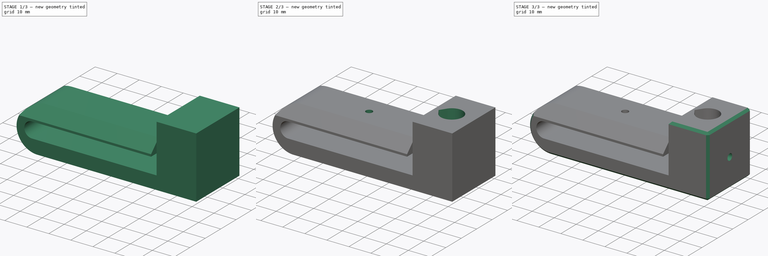
[diagram: build sequence overview — one tinted view per stage of 3, left to right]
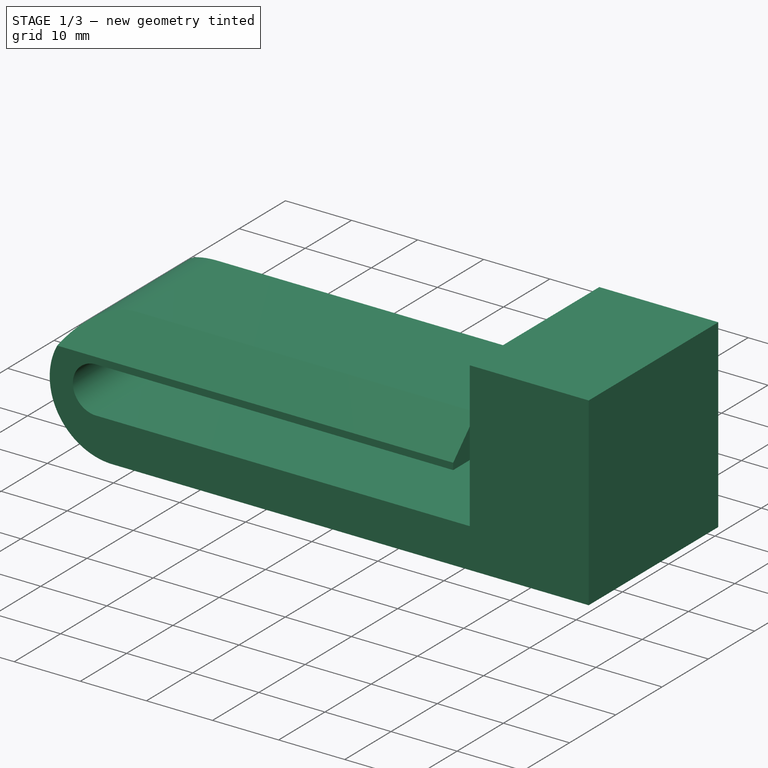
[diagram: stage 1 of 3 — iso view after this stage's code; geometry added in this stage tinted green]
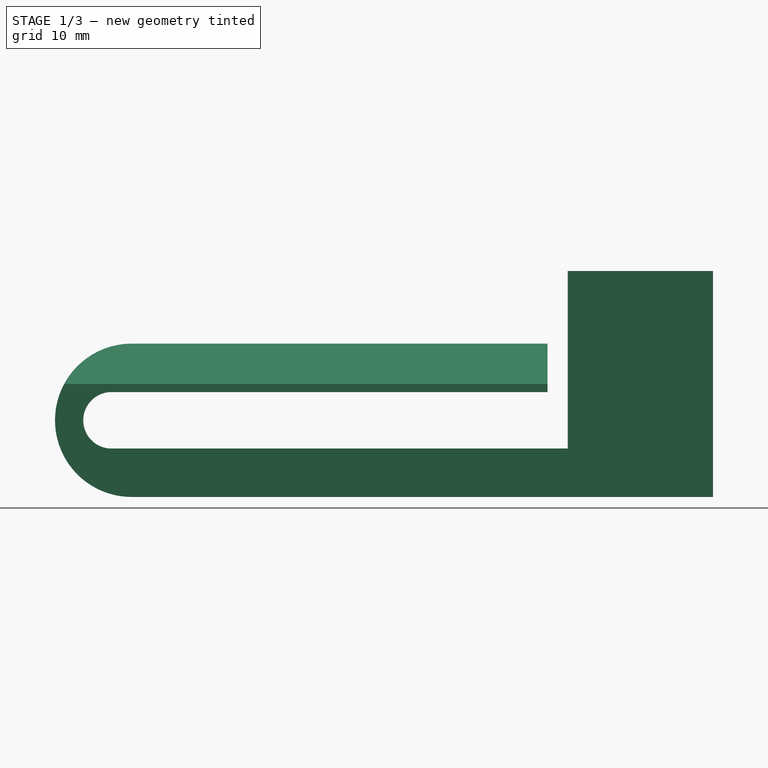
[diagram: stage 1 of 3 — front view after this stage's code; geometry added in this stage tinted green]
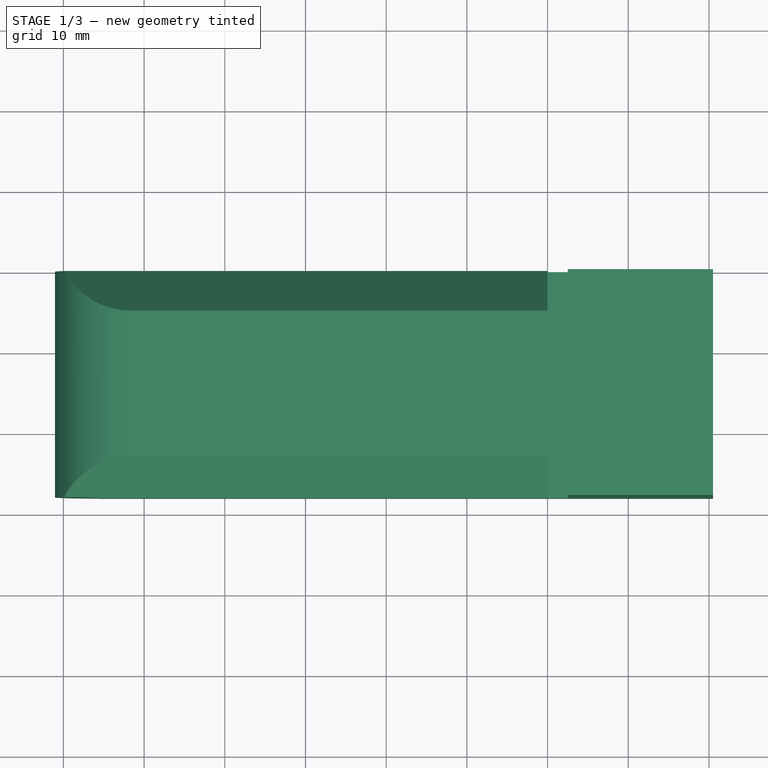
[diagram: stage 1 of 3 — top view after this stage's code; geometry added in this stage tinted green]
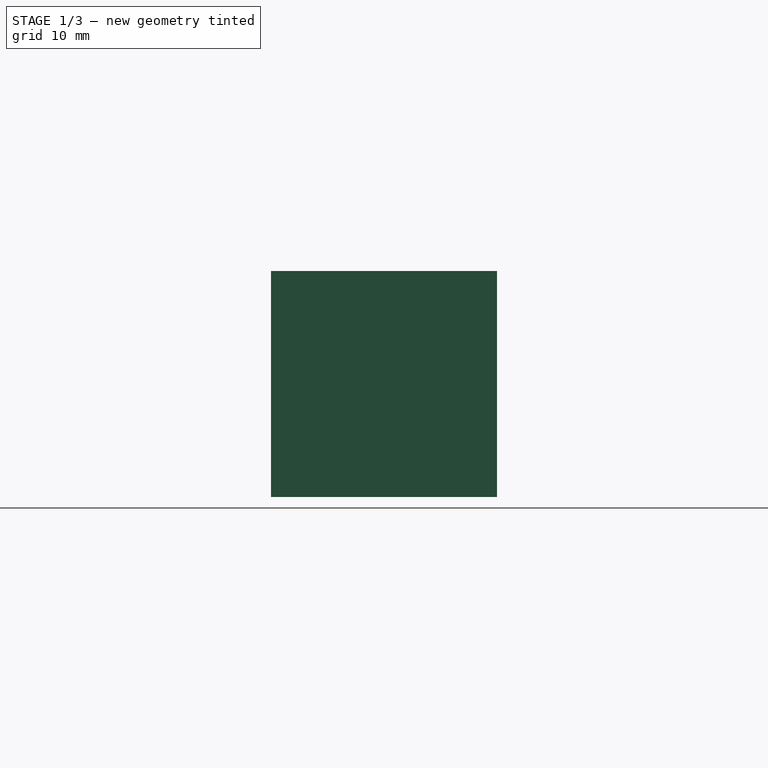
[diagram: stage 1 of 3 — right view after this stage's code; geometry added in this stage tinted green]
FCSTD DOCUMENT  (FreeCAD 0.20R29410 (Git))
Label: #24_TOOL_Pen
License: All rights reserved
LicenseURL: http://en.wikipedia.org/wiki/All_rights_reserved
objects: Sketcher::SketchObject×5, PartDesign::Pocket×4, PartDesign::Pad×1, PartDesign::Chamfer×1, PartDesign::Body×1
note: 18 computed .brp shape members not serialized (recipe doc carries the construction recipe); baked Part::Feature solids carry a one-line shape summary decoded from their .brp

FEATURE [Sketcher::SketchObject] Sketch
  FullyConstrained = true
  MapMode = 5
  Placement = pos=(0,0,0) rot=(1,0,0;1.5708rad)
  Support = -> [XZ_Plane]
  sketch-geometry (10):
    g0: LineSegment StartX=0 StartY=0 StartZ=0 EndX=-54.04 EndY=0 EndZ=0
    g1: LineSegment StartX=0 StartY=0 StartZ=0 EndX=0 EndY=6 EndZ=0
    g2: LineSegment StartX=0 StartY=6 StartZ=0 EndX=-51.54 EndY=6 EndZ=0
    g3: ArcOfCircle CenterX=-51.54 CenterY=-3.5 CenterZ=0 NormalX=0 NormalY=0 NormalZ=1 AngleXU=0 Radius=9.5 StartAngle=1.5708 EndAngle=4.71239
    g4: ArcOfCircle CenterX=-54.04 CenterY=-3.5 CenterZ=0 NormalX=0 NormalY=0 NormalZ=1 AngleXU=0 Radius=3.5 StartAngle=1.5708 EndAngle=4.71239
    g5: LineSegment StartX=-51.54 StartY=-13 StartZ=0 EndX=20.5 EndY=-13 EndZ=0
    g6: LineSegment StartX=-54.04 StartY=-7 StartZ=0 EndX=2.5 EndY=-7 EndZ=0
    g7: LineSegment StartX=2.5 StartY=-7 StartZ=0 EndX=2.5 EndY=15 EndZ=0
    g8: LineSegment StartX=2.5 StartY=15 StartZ=0 EndX=20.5 EndY=15 EndZ=0
    g9: LineSegment StartX=20.5 StartY=-13 StartZ=0 EndX=20.5 EndY=15 EndZ=0
  constraints (27):
    c: Coincident(g0,g-1)
    c: Horizontal(g0)
    c: Vertical(g1)
    c: Horizontal(g2)
    c: Coincident(g1,g0)
    c: Coincident(g1,g2)
    c: Horizontal(g5)
    c: DistanceX(g5,g5) = 72.04
    c: DistanceX(g2,g2) = 51.54
    c: DistanceY(g1,g1) = 6
    c: Diameter(g3) = 19
    c: Diameter(g4) = 7
    c: DistanceX(g0,g0) = 54.04
    c: Horizontal(g6)
    c: DistanceX(g6,g6) = 56.54
    c: Coincident(g7,g6)
    c: Vertical(g7)
    c: Coincident(g8,g7)
    c: Horizontal(g8)
    c: Coincident(g9,g5)
    c: Vertical(g9)
    c: Coincident(g8,g9)
    c: DistanceY(g7,g7) = 22
    c: Tangent(g4,g6) = -1.5708
    c: Tangent(g4,g0) = -1.5708
    c: Tangent(g3,g2) = -1.5708
    c: Tangent(g3,g5) = -1.5708
FEATURE [PartDesign::Pad] Pad
  Direction = (0,-1,2e-16)
  Length = 28
  Length2 = 10
  Placement = pos=(0,0,0) rot=(1,0,0;1.5708rad)
  Profile = -> Sketch
  ReferenceAxis = -> Sketch [N_Axis]
  Refine = true
  Type = 0
FEATURE [Sketcher::SketchObject] Sketch001
  ExternalGeometry = -> [Pad]
  FullyConstrained = true
  MapMode = 5
  Placement = pos=(0,0,0) rot=(0.707107,0,0.707107;3.14159rad)
  Support = -> [Pad]
  sketch-geometry (6):
    g0: LineSegment StartX=1 StartY=28 StartZ=0 EndX=6 EndY=23 EndZ=0
    g1: LineSegment StartX=6 StartY=5 StartZ=0 EndX=1 EndY=0 EndZ=0
    g2: LineSegment StartX=1 StartY=28 StartZ=0 EndX=6 EndY=28 EndZ=0
    g3: LineSegment StartX=6 StartY=23 StartZ=0 EndX=6 EndY=28 EndZ=0
    g4: LineSegment StartX=6 StartY=5 StartZ=0 EndX=6 EndY=0 EndZ=0
    g5: LineSegment StartX=1 StartY=0 StartZ=0 EndX=6 EndY=0 EndZ=0
  constraints (16):
    c: PointOnObject(g0,g-3)
    c: PointOnObject(g0,g-5)
    c: PointOnObject(g1,g-5)
    c: PointOnObject(g1,g-4)
    c: DistanceX(g-1,g1) = 1
    c: DistanceX(g-3,g0) = 1
    c: Angle(g0,g-3) = 0.785398
    c: Angle(g1,g-4) = 2.35619
    c: Coincident(g2,g0)
    c: Coincident(g2,g-5)
    c: Coincident(g3,g0)
    c: Coincident(g3,g2)
    c: Coincident(g4,g1)
    c: Coincident(g4,g-5)
    c: Coincident(g5,g1)
    c: Coincident(g5,g4)
FEATURE [PartDesign::Pocket] Pocket
  BaseFeature = -> Pad
  Direction = (-1,0,2e-16)
  Length = 100
  Length2 = 5
  Placement = pos=(0,0,0) rot=(1,0,0;1.5708rad)
  Profile = -> Sketch001
  ReferenceAxis = -> Sketch001 [N_Axis]
  Refine = true
  Type = 0
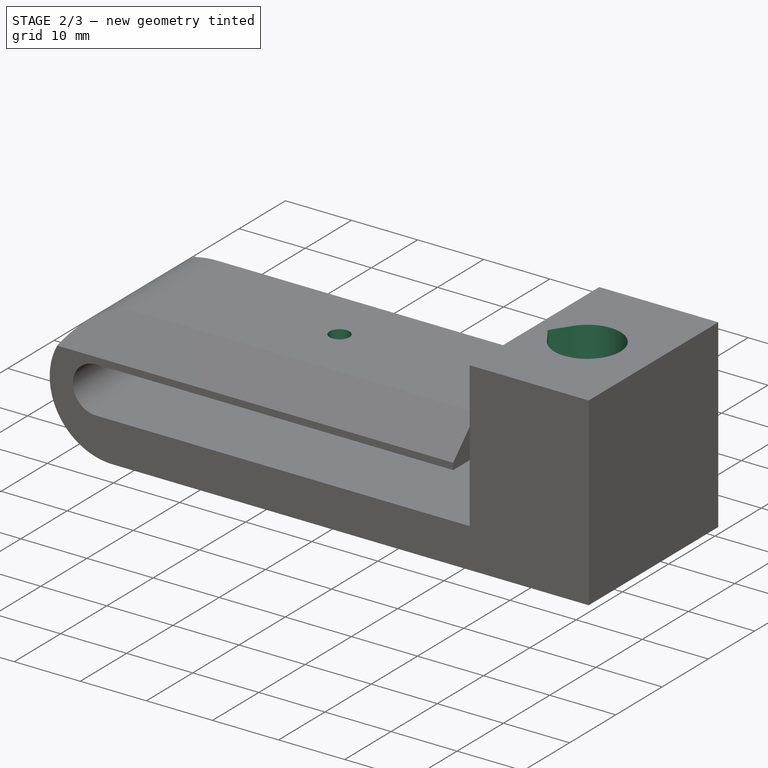
[diagram: stage 2 of 3 — iso view after this stage's code; geometry added in this stage tinted green]
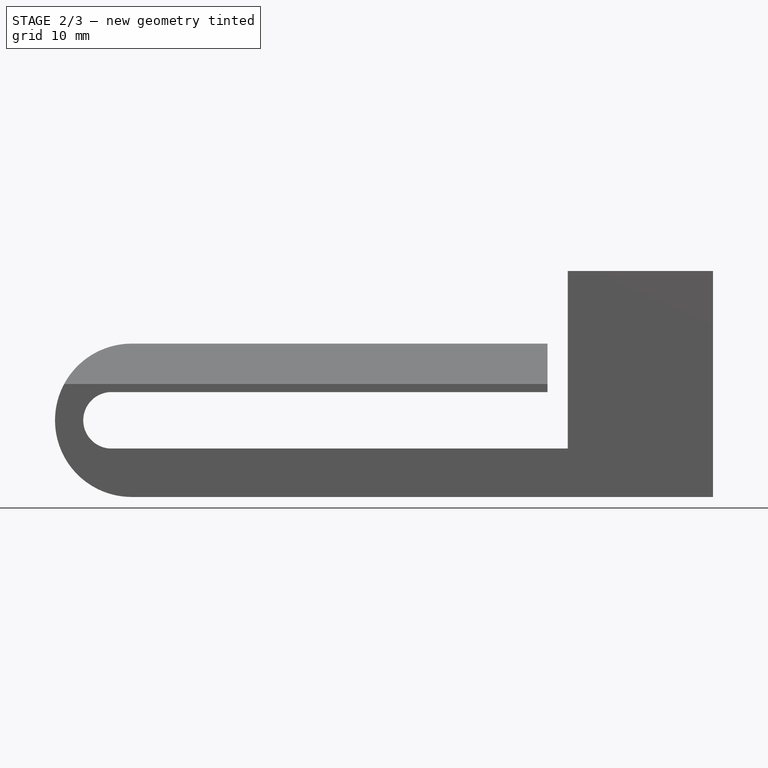
[diagram: stage 2 of 3 — front view after this stage's code; geometry added in this stage tinted green]
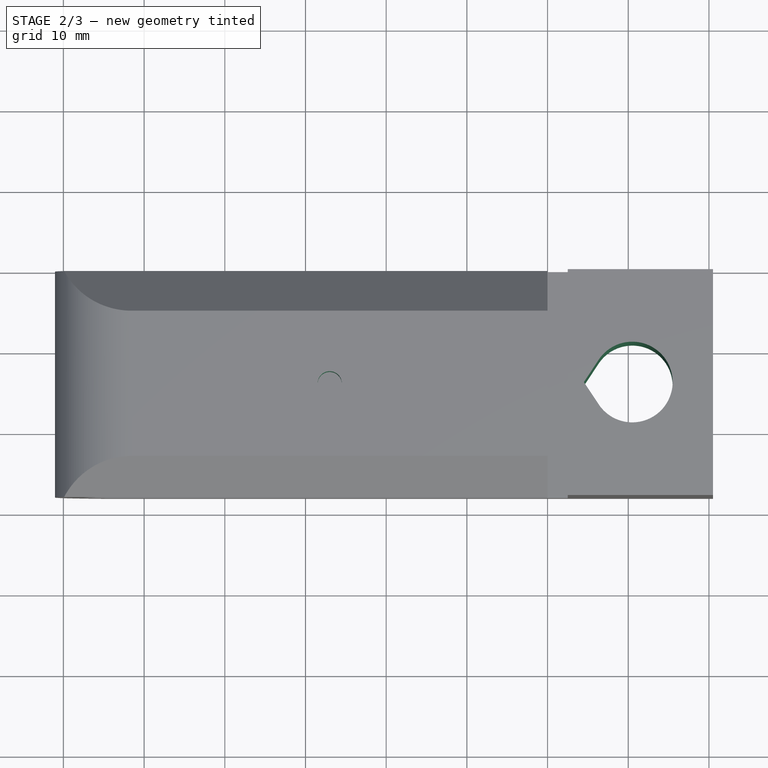
[diagram: stage 2 of 3 — top view after this stage's code; geometry added in this stage tinted green]
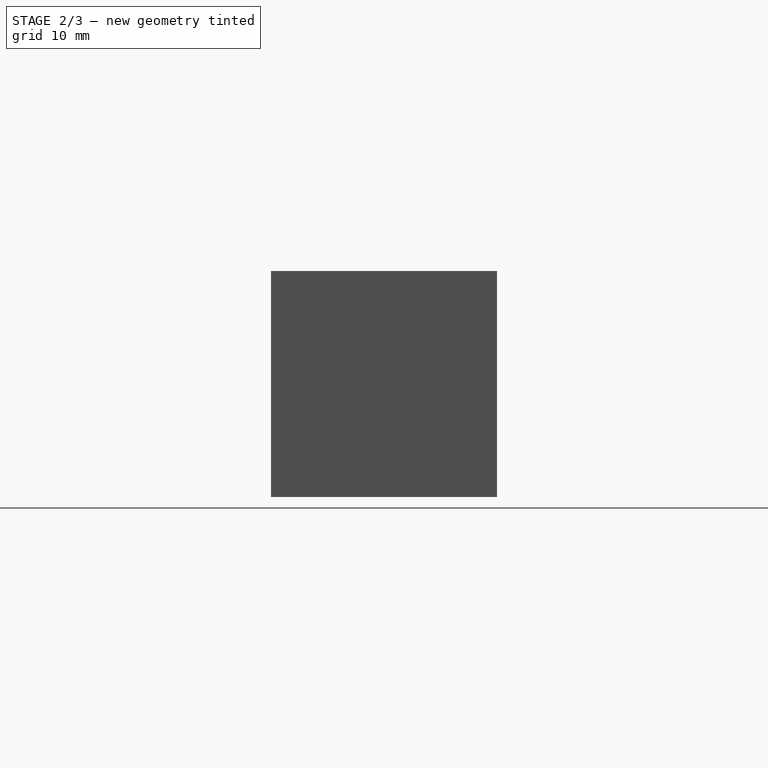
[diagram: stage 2 of 3 — right view after this stage's code; geometry added in this stage tinted green]
FEATURE [Sketcher::SketchObject] Sketch002
  ExternalGeometry = -> [Pocket]
  FullyConstrained = true
  MapMode = 5
  Placement = pos=(0,1.3e-15,6) rot=(0,0,1;3.14159rad)
  Support = -> [Pocket]
  sketch-geometry (3):
    g0: Circle CenterX=27 CenterY=14 CenterZ=0 NormalX=0 NormalY=0 NormalZ=1 AngleXU=0 Radius=1.5
    g1: LineSegment StartX=0 StartY=5 StartZ=0 EndX=27 EndY=14 EndZ=0
    g2: LineSegment StartX=27 StartY=14 StartZ=0 EndX=0 EndY=23 EndZ=0
  constraints (7):
    c: Diameter(g0) = 3
    c: DistanceX(g-3,g0) = 27
    c: Coincident(g1,g-3)
    c: Coincident(g1,g0)
    c: Coincident(g2,g0)
    c: Coincident(g2,g-3)
    c: Equal(g2,g1)
FEATURE [PartDesign::Pocket] Pocket001
  BaseFeature = -> Pocket
  Direction = (0,-2e-16,-1)
  Length = 7
  Length2 = 5
  Placement = pos=(0,0,0) rot=(1,0,0;1.5708rad)
  Profile = -> Sketch002
  ReferenceAxis = -> Sketch002 [N_Axis]
  Refine = true
  Type = 0
FEATURE [Sketcher::SketchObject] Sketch003
  ExternalGeometry = -> [Pocket001]
  FullyConstrained = true
  MapMode = 5
  Placement = pos=(0,3.3e-15,15) rot=(0,0,1;3.14159rad)
  Support = -> [Pocket001]
  sketch-geometry (7):
    g0: ArcOfCircle CenterX=-10.5 CenterY=14 CenterZ=0 NormalX=0 NormalY=0 NormalZ=1 AngleXU=0 Radius=5 StartAngle=0.585686 EndAngle=5.6975
    g1: LineSegment StartX=-6.33333 StartY=11.2361 StartZ=0 EndX=-4.5 EndY=14 EndZ=0
    g2: LineSegment StartX=-4.5 StartY=14 StartZ=0 EndX=-6.33333 EndY=16.7639 EndZ=0
    g3: LineSegment StartX=-10.5 StartY=14 StartZ=0 EndX=-2.5 EndY=28 EndZ=0
    g4: LineSegment StartX=-10.5 StartY=14 StartZ=0 EndX=-2.5 EndY=0 EndZ=0
    g5: LineSegment StartX=-4.5 StartY=14 StartZ=0 EndX=-2.5 EndY=28 EndZ=0
    g6: LineSegment StartX=-4.5 StartY=14 StartZ=0 EndX=-2.5 EndY=0 EndZ=0
  constraints (16):
    c: Coincident(g2,g1)
    c: DistanceX(g0,g1) = 6
    c: Diameter(g0) = 10
    c: Tangent(g0,g1) = -1.5708
    c: Tangent(g0,g2) = -1.5708
    c: Coincident(g3,g0)
    c: Coincident(g3,g-3)
    c: Coincident(g4,g0)
    c: Coincident(g4,g-3)
    c: Equal(g4,g3)
    c: DistanceX(g0,g4) = 8
    c: Coincident(g5,g1)
    c: Coincident(g5,g3)
    c: Coincident(g6,g1)
    c: Coincident(g6,g4)
    c: Equal(g5,g6)
FEATURE [PartDesign::Pocket] Pocket002
  BaseFeature = -> Pocket001
  Direction = (0,-2e-16,-1)
  Length = 40
  Length2 = 5
  Placement = pos=(0,0,0) rot=(1,0,0;1.5708rad)
  Profile = -> Sketch003
  ReferenceAxis = -> Sketch003 [N_Axis]
  Refine = true
  Type = 0
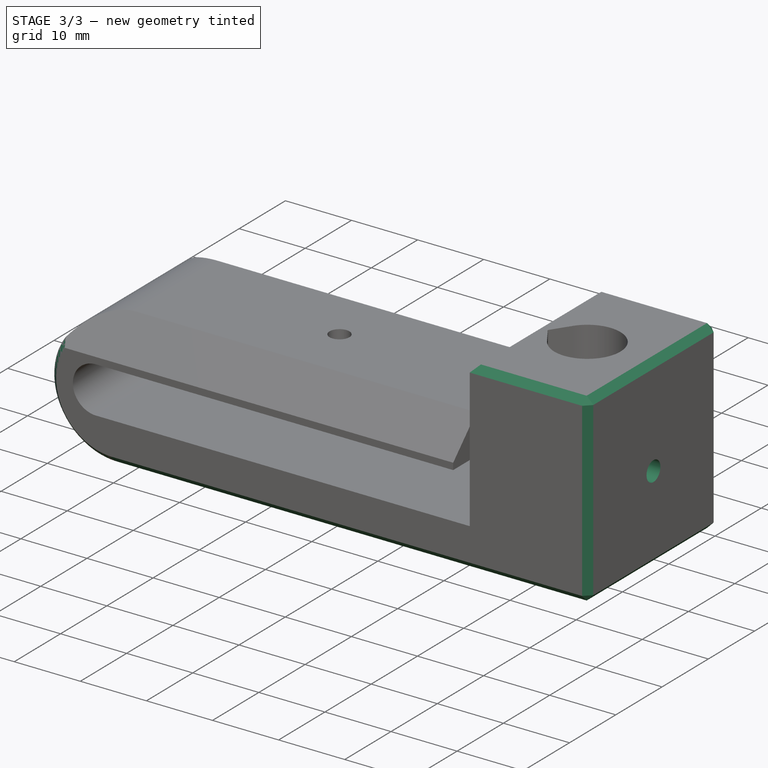
[diagram: stage 3 of 3 — iso view after this stage's code; geometry added in this stage tinted green]
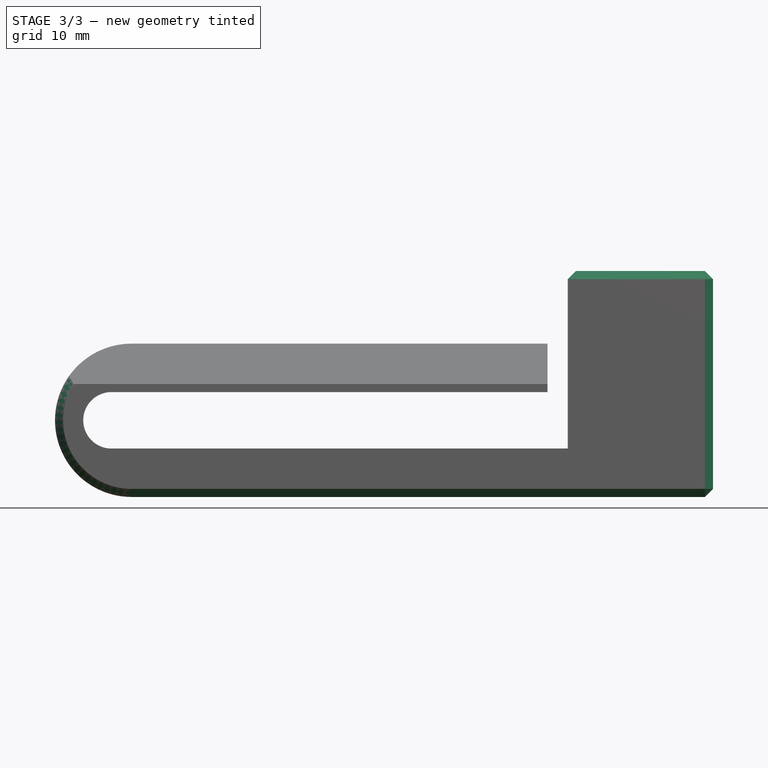
[diagram: stage 3 of 3 — front view after this stage's code; geometry added in this stage tinted green]
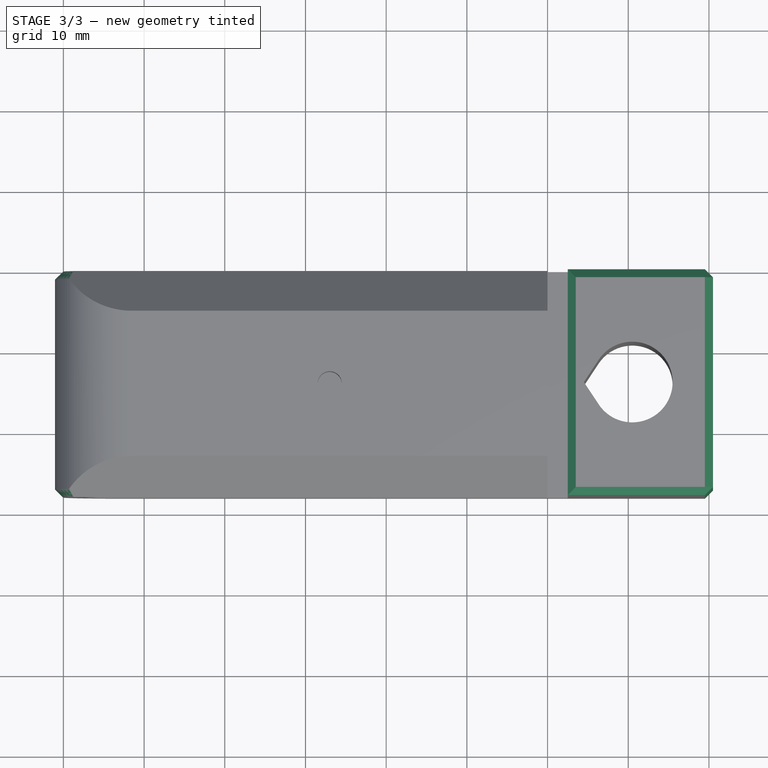
[diagram: stage 3 of 3 — top view after this stage's code; geometry added in this stage tinted green]
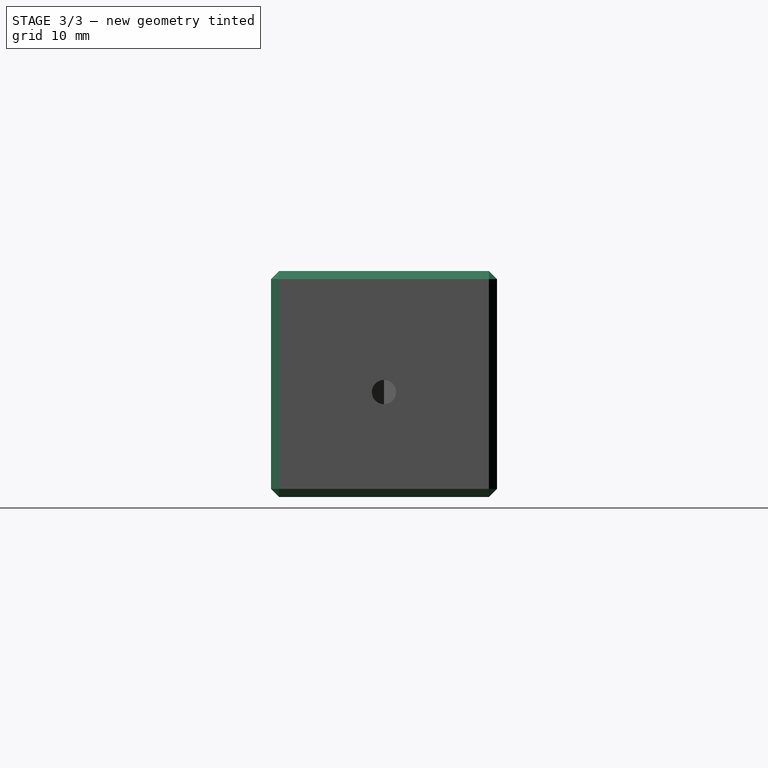
[diagram: stage 3 of 3 — right view after this stage's code; geometry added in this stage tinted green]
FEATURE [Sketcher::SketchObject] Sketch004
  ExternalGeometry = -> [Pocket002]
  FullyConstrained = true
  MapMode = 5
  Placement = pos=(20.5,0,0) rot=(0.707107,0,0.707107;3.14159rad)
  Support = -> [Pocket002]
  sketch-geometry (3):
    g0: Circle CenterX=0 CenterY=14 CenterZ=0 NormalX=0 NormalY=0 NormalZ=1 AngleXU=0 Radius=1.5
    g1: LineSegment StartX=0 StartY=14 StartZ=0 EndX=15 EndY=28 EndZ=0
    g2: LineSegment StartX=0 StartY=14 StartZ=0 EndX=15 EndY=-3.6e-15 EndZ=0
  constraints (7):
    c: PointOnObject(g0,g-2)
    c: Diameter(g0) = 3
    c: Coincident(g1,g0)
    c: Coincident(g1,g-3)
    c: Coincident(g2,g0)
    c: Coincident(g2,g-3)
    c: Equal(g1,g2)
FEATURE [PartDesign::Pocket] Pocket003
  BaseFeature = -> Pocket002
  Direction = (-1,0,2e-16)
  Length = 10
  Length2 = 5
  Placement = pos=(0,0,0) rot=(1,0,0;1.5708rad)
  Profile = -> Sketch004
  ReferenceAxis = -> Sketch004 [N_Axis]
  Refine = true
  Type = 0
FEATURE [PartDesign::Chamfer] Chamfer
  Angle = 45
  Base = -> Pocket003 [Edge20,Edge21,Edge22,Edge36,Edge14,Edge40,Edge15,Edge23,Edge42,Edge13,Edge12]
  BaseFeature = -> Pocket003
  ChamferType = 0
  FlipDirection = false
  Placement = pos=(0,0,0) rot=(1,0,0;1.5708rad)
  Refine = true
  Size = 1
  Size2 = 1
  SupportTransform = false
  UseAllEdges = false
FEATURE [PartDesign::Body] Body
  Group = -> [Sketch,Pad,Sketch001,Pocket,Sketch002,Pocket001,Sketch003,Pocket002,Sketch004,Pocket003,Chamfer]
  Origin = -> Origin
  Tip = -> Chamfer
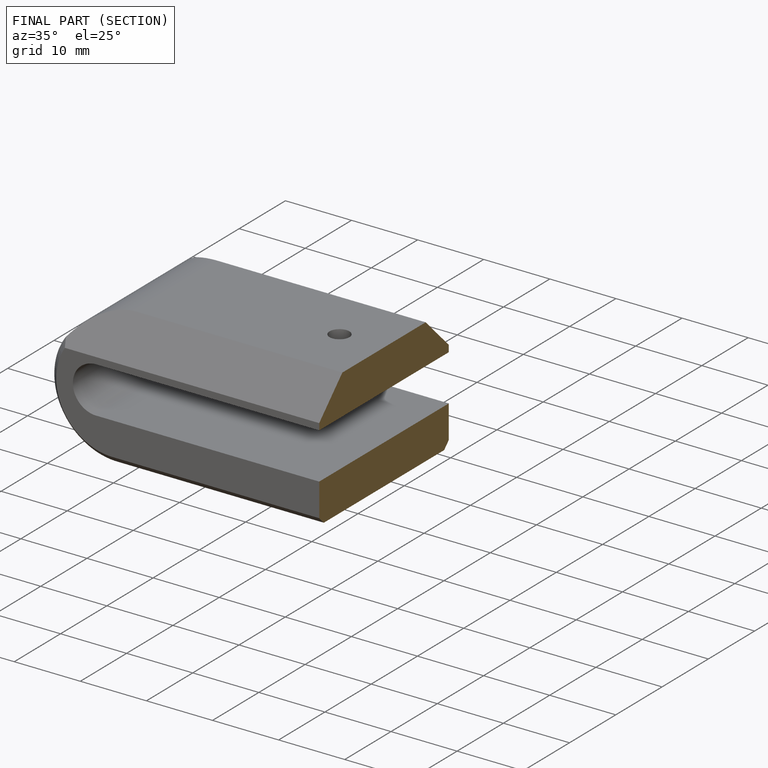
[diagram: finished part — half-section view (interior)]
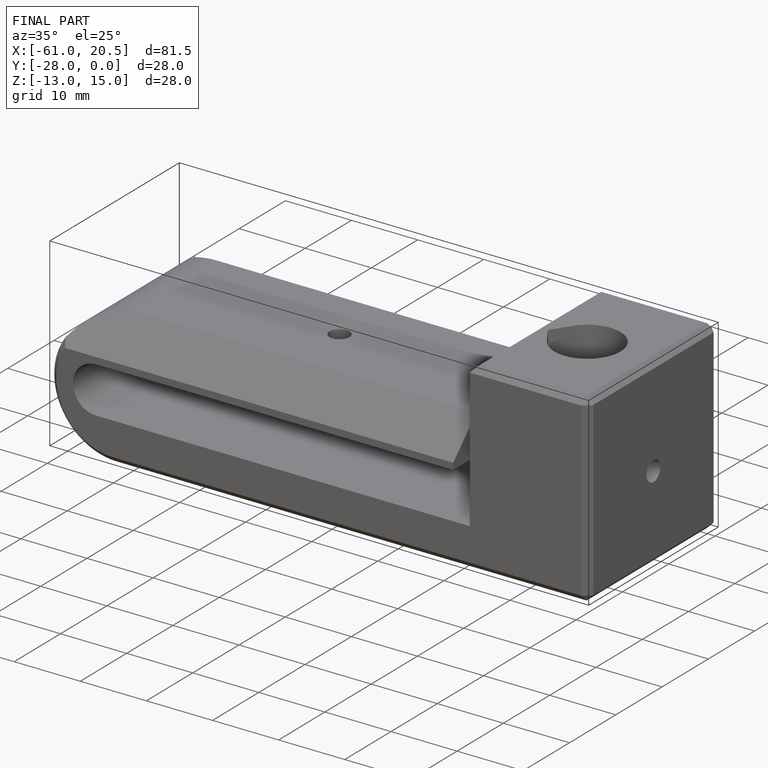
[diagram: finished part — iso view with bounding-box wireframe]
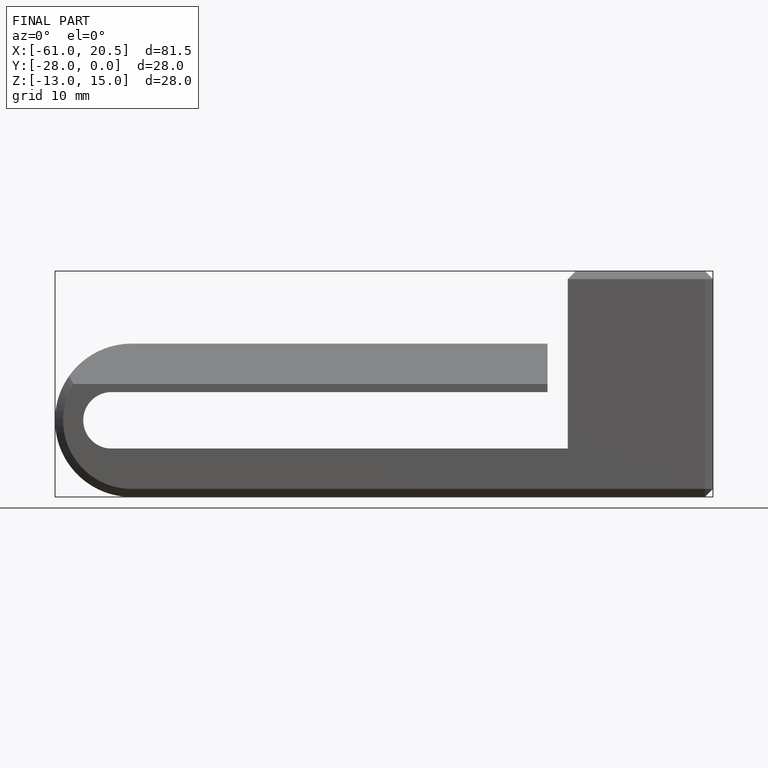
[diagram: finished part — front view with bounding-box wireframe]
